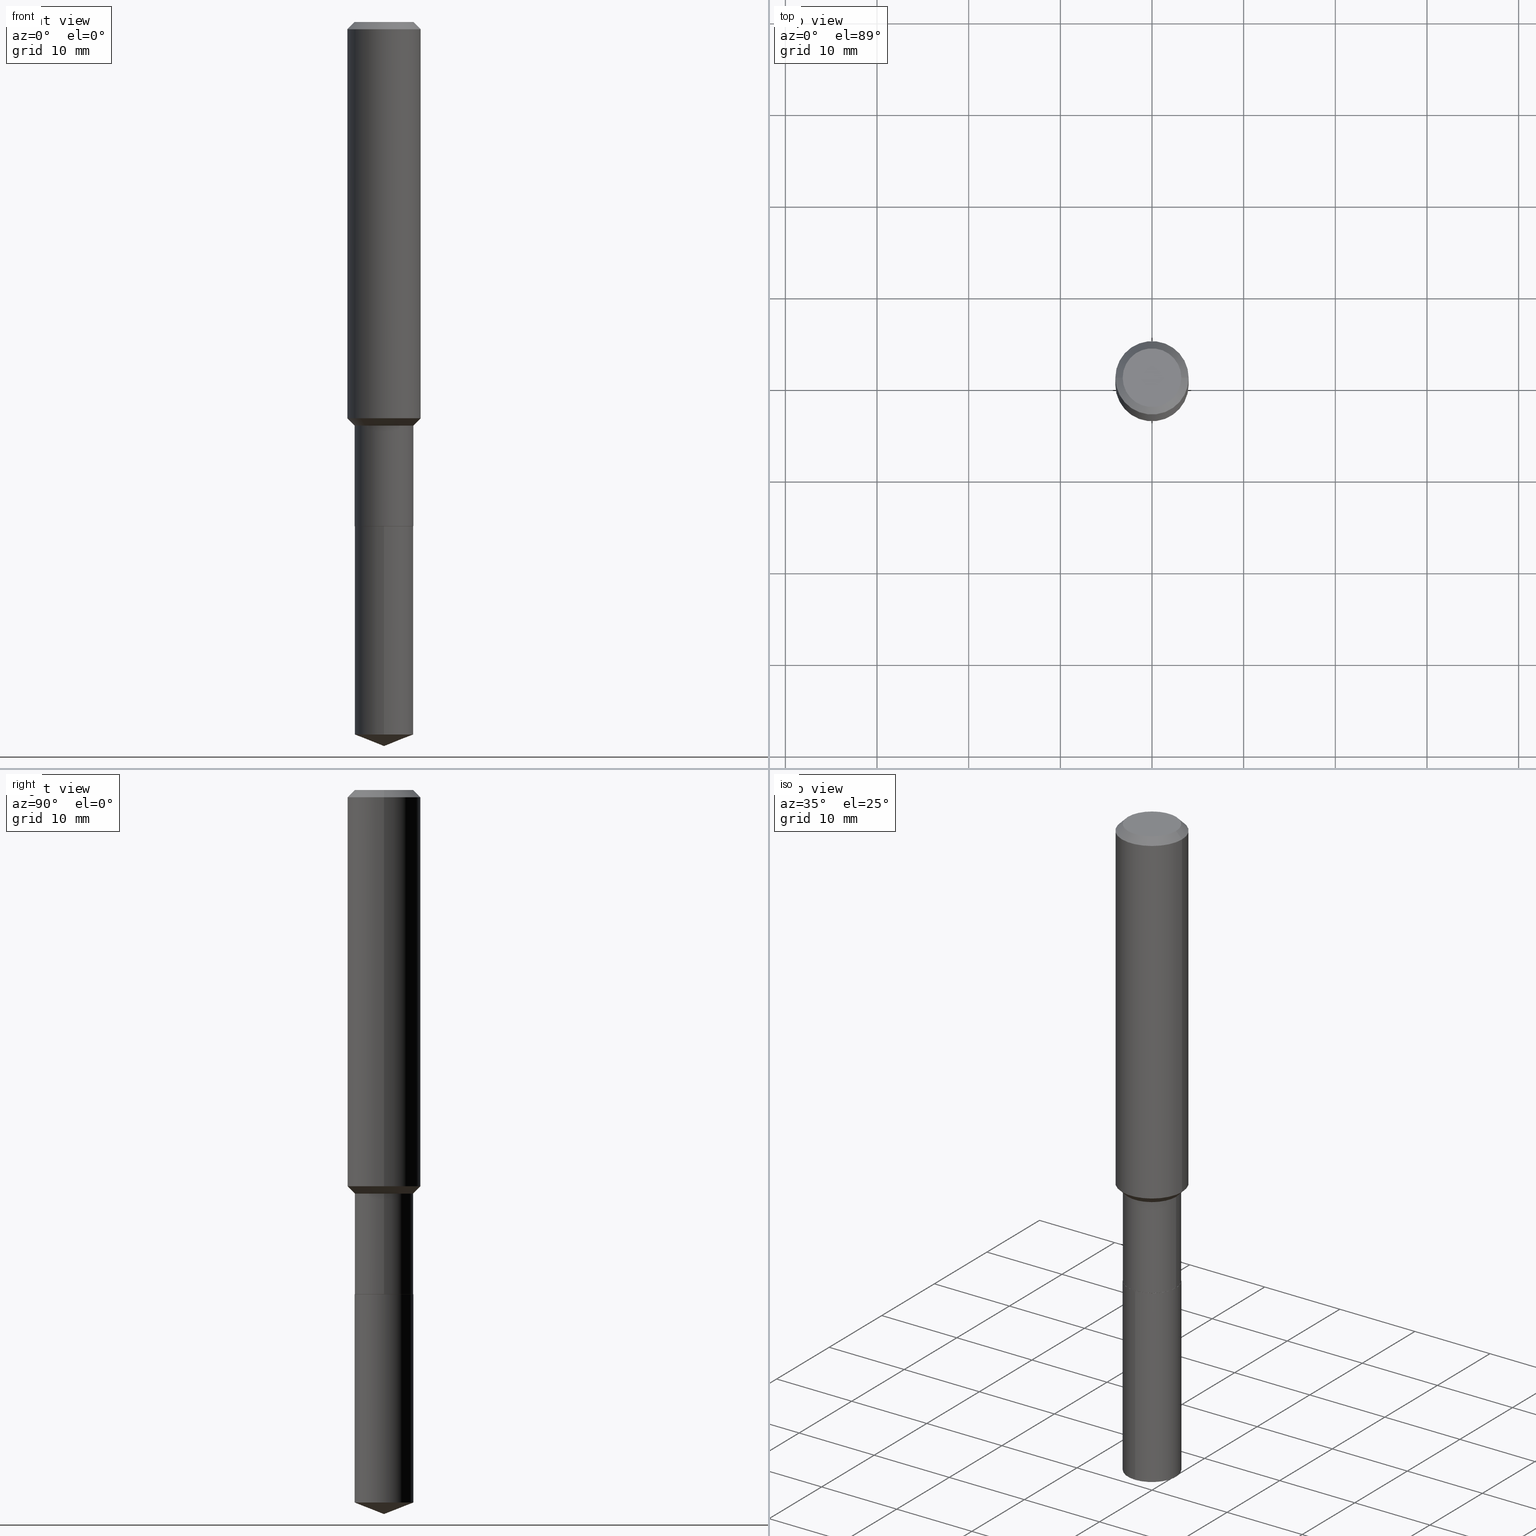
[diagram: canonical four-view strip — front | top / right | iso, engineering-drawing reading convention]
A machine part, canonical four-view strip (front | top / right | iso — engineering-drawing reading convention). The complete STEP part file that produces these views, byte-faithful:
ISO-10303-21;
HEADER;
FILE_DESCRIPTION (( 'STEP AP203' ),
    '1' );
FILE_NAME ('66434.STEP',
    '2024-04-24T22:42:02',
    ( '' ),
    ( '' ),
    'SwSTEP 2.0',
    'SolidWorks 2023',
    '' );
FILE_SCHEMA (( 'CONFIG_CONTROL_DESIGN' ));
ENDSEC;

DATA;
#1 = CIRCLE ( 'NONE', #5, 0.1260000000000000009 ) ;
#2 = ORIENTED_EDGE ( 'NONE', *, *, #38, .T. ) ;
#3 = CC_DESIGN_SECURITY_CLASSIFICATION ( #187, ( #448 ) ) ;
#4 = DIRECTION ( 'NONE',  ( 1.000000000000000000, -6.982962677686265922E-15, 4.876176775795935793E-29 ) ) ;
#5 = AXIS2_PLACEMENT_3D ( 'NONE', #270, #157, #198 ) ;
#6 = ORIENTED_EDGE ( 'NONE', *, *, #36, .T. ) ;
#7 = EDGE_CURVE ( 'NONE', #430, #361, #96, .T. ) ;
#8 = DIRECTION ( 'NONE',  ( -6.982962677686265922E-15, -1.000000000000000000, 4.336266656609941617E-15 ) ) ;
#9 = ORIENTED_EDGE ( 'NONE', *, *, #125, .T. ) ;
#10 = DIRECTION ( 'NONE',  ( -2.445321399674212677E-29, 3.491692433356646244E-15, 1.000000000000000000 ) ) ;
#11 = DIRECTION ( 'NONE',  ( -2.445321399674212397E-29, 3.491692433356646639E-15, 1.000000000000000000 ) ) ;
#12 = DESIGN_CONTEXT ( 'detailed design', #489, 'design' ) ;
#13 = DIRECTION ( 'NONE',  ( -6.982962677686266711E-15, -1.000000000000000000, 3.498627837349992784E-15 ) ) ;
#14 = DIRECTION ( 'NONE',  ( -2.445468806185136597E-29, 3.491481338843145583E-15, 1.000000000000000000 ) ) ;
#15 = CONICAL_SURFACE ( 'NONE', #265, 99.94676754584030220, 1.195550537616120623 ) ;
#16 =( GEOMETRIC_REPRESENTATION_CONTEXT ( 3 ) GLOBAL_UNCERTAINTY_ASSIGNED_CONTEXT ( ( #282 ) ) GLOBAL_UNIT_ASSIGNED_CONTEXT ( ( #99, #404, #284 ) ) REPRESENTATION_CONTEXT ( 'NONE', 'WORKASPACE' ) );
#17 = ORIENTED_EDGE ( 'NONE', *, *, #118, .F. ) ;
#18 = AXIS2_PLACEMENT_3D ( 'NONE', #449, #360, #185 ) ;
#19 = ADVANCED_FACE ( 'NONE', ( #254 ), #356, .T. ) ;
#20 = CARTESIAN_POINT ( 'NONE',  ( 0.1255000000000000004, -8.436466359046690257E-15, -2.165299999999999780 ) ) ;
#21 = LINE ( 'NONE', #165, #238 ) ;
#22 = ORIENTED_EDGE ( 'NONE', *, *, #143, .F. ) ;
#23 = APPLICATION_PROTOCOL_DEFINITION ( 'international standard', 'config_control_design', 1994, #101 ) ;
#24 = CARTESIAN_POINT ( 'NONE',  ( -9.439721640706201686E-47, 1.347742071746726764E-32, 3.860086710912459732E-18 ) ) ;
#25 = PERSON_AND_ORGANIZATION ( #301, #247 ) ;
#26 = PLANE ( 'NONE',  #108 ) ;
#27 = EDGE_CURVE ( 'NONE', #396, #343, #299, .T. ) ;
#28 = VERTEX_POINT ( 'NONE', #133 ) ;
#29 = AXIS2_PLACEMENT_3D ( 'NONE', #342, #91, #4 ) ;
#30 = COORDINATED_UNIVERSAL_TIME_OFFSET ( 5, 0, .BEHIND. ) ;
#31 = CARTESIAN_POINT ( 'NONE',  ( -0.1260000000000000009, -5.910660726749217363E-15, -2.164800000000000058 ) ) ;
#32 = DATE_AND_TIME ( #371, #331 ) ;
#33 = DIRECTION ( 'NONE',  ( -2.445468806185136597E-29, 3.491481338843145583E-15, 1.000000000000000000 ) ) ;
#34 = PERSON_AND_ORGANIZATION ( #301, #247 ) ;
#35 = VECTOR ( 'NONE', #398, 39.37007874015748143 ) ;
#36 = EDGE_CURVE ( 'NONE', #420, #454, #374, .T. ) ;
#37 = AXIS2_PLACEMENT_3D ( 'NONE', #446, #78, #75 ) ;
#38 = EDGE_CURVE ( 'NONE', #345, #403, #269, .T. ) ;
#39 = CC_DESIGN_PERSON_AND_ORGANIZATION_ASSIGNMENT ( #262, #411, ( #448 ) ) ;
#40 = DATE_AND_TIME ( #191, #84 ) ;
#41 = ORIENTED_EDGE ( 'NONE', *, *, #350, .F. ) ;
#42 = FACE_OUTER_BOUND ( 'NONE', #328, .T. ) ;
#43 = EDGE_LOOP ( 'NONE', ( #9, #438, #400, #51 ) ) ;
#44 = DIRECTION ( 'NONE',  ( 1.000000000000000000, -6.982962677686265922E-15, 4.876281427513067258E-29 ) ) ;
#45 = CARTESIAN_POINT ( 'NONE',  ( 7.703226739483228723E-31, -1.099816621735597661E-16, -0.03150000000000019451 ) ) ;
#46 = ORIENTED_EDGE ( 'NONE', *, *, #385, .T. ) ;
#47 = AXIS2_PLACEMENT_3D ( 'NONE', #287, #168, #164 ) ;
#48 = DIRECTION ( 'NONE',  ( 2.445468806185136597E-29, -3.491481338843145583E-15, -1.000000000000000000 ) ) ;
#49 = AXIS2_PLACEMENT_3D ( 'NONE', #346, #161, #457 ) ;
#50 = DIRECTION ( 'NONE',  ( 1.000000000000000000, -6.982962677686267499E-15, 0.000000000000000000 ) ) ;
#51 = ORIENTED_EDGE ( 'NONE', *, *, #439, .F. ) ;
#52 = LINE ( 'NONE', #462, #305 ) ;
#53 = ADVANCED_FACE ( 'NONE', ( #184 ), #249, .T. ) ;
#54 = EDGE_LOOP ( 'NONE', ( #41, #313, #105, #475 ) ) ;
#55 = LINE ( 'NONE', #357, #35 ) ;
#56 = CARTESIAN_POINT ( 'NONE',  ( 7.606082573554659811E-29, -1.085894764032567561E-14, -3.110199999999999854 ) ) ;
#57 = CARTESIAN_POINT ( 'NONE',  ( -8.798532973884166966E-16, -0.1260000000000075782, -2.165299999999999336 ) ) ;
#58 = EDGE_LOOP ( 'NONE', ( #174, #251, #211, #158 ) ) ;
#59 = DIRECTION ( 'NONE',  ( -2.445321399674212677E-29, 3.491692433356646244E-15, 1.000000000000000000 ) ) ;
#60 = CYLINDRICAL_SURFACE ( 'NONE', #126, 0.1575000000000000844 ) ;
#61 = ORIENTED_EDGE ( 'NONE', *, *, #87, .F. ) ;
#62 = DIRECTION ( 'NONE',  ( 1.000000000000000000, 0.000000000000000000, 0.000000000000000000 ) ) ;
#63 = PRODUCT_DEFINITION ( 'UNKNOWN', '', #448, #12 ) ;
#64 = CARTESIAN_POINT ( 'NONE',  ( -0.1259999999999999454, -5.158246498228519348E-15, -1.733800000000000008 ) ) ;
#65 = VECTOR ( 'NONE', #460, 39.37007874015748143 ) ;
#66 = LINE ( 'NONE', #445, #318 ) ;
#67 = DIRECTION ( 'NONE',  ( -6.982962677686265922E-15, -1.000000000000000000, 4.336266656609941617E-15 ) ) ;
#68 = CC_DESIGN_PERSON_AND_ORGANIZATION_ASSIGNMENT ( #109, #443, ( #63 ) ) ;
#69 = SECURITY_CLASSIFICATION_LEVEL ( 'unclassified' ) ;
#70 = DIMENSIONAL_EXPONENTS ( 1.000000000000000000, 0.000000000000000000, 0.000000000000000000, 0.000000000000000000, 0.000000000000000000, 0.000000000000000000, 0.000000000000000000 ) ;
#71 = CLOSED_SHELL ( 'NONE', ( #370, #19, #413, #474, #340 ) ) ;
#72 = EDGE_CURVE ( 'NONE', #435, #420, #484, .T. ) ;
#73 = CONICAL_SURFACE ( 'NONE', #407, 0.1259999999999999454, 0.7853981633974491672 ) ;
#74 = CC_DESIGN_PERSON_AND_ORGANIZATION_ASSIGNMENT ( #302, #451, ( #448 ) ) ;
#75 = DIRECTION ( 'NONE',  ( 1.000000000000000000, -6.982962677686267499E-15, 0.000000000000000000 ) ) ;
#76 = ORIENTED_EDGE ( 'NONE', *, *, #256, .F. ) ;
#77 = CONICAL_SURFACE ( 'NONE', #452, 0.1575000000000000011, 0.7853981633974449483 ) ;
#78 = DIRECTION ( 'NONE',  ( -2.445468806185136597E-29, 3.491481338843145583E-15, 1.000000000000000000 ) ) ;
#79 = ORIENTED_EDGE ( 'NONE', *, *, #388, .F. ) ;
#80 = CARTESIAN_POINT ( 'NONE',  ( 4.239953816163789675E-29, -6.053530345286245589E-15, -1.733800000000000008 ) ) ;
#81 = VERTEX_POINT ( 'NONE', #380 ) ;
#82 = ADVANCED_FACE ( 'NONE', ( #42 ), #192, .T. ) ;
#83 = DIRECTION ( 'NONE',  ( 2.445468806185136597E-29, -3.491481338843145583E-15, -1.000000000000000000 ) ) ;
#84 = LOCAL_TIME ( 18, 42, 2.000000000000000000, #159 ) ;
#85 = PLANE ( 'NONE',  #341 ) ;
#86 = CONICAL_SURFACE ( 'NONE', #477, 0.1259999999999999454, 0.7853981633974491672 ) ;
#87 = EDGE_CURVE ( 'NONE', #81, #345, #88, .T. ) ;
#88 = LINE ( 'NONE', #272, #65 ) ;
#89 = VERTEX_POINT ( 'NONE', #349 ) ;
#90 = CARTESIAN_POINT ( 'NONE',  ( -8.866673825358101725E-28, 1.266088013143874858E-13, 36.25987874015748247 ) ) ;
#91 = DIRECTION ( 'NONE',  ( -2.445468806185136597E-29, 3.491481338843145583E-15, 1.000000000000000000 ) ) ;
#92 = ORIENTED_EDGE ( 'NONE', *, *, #409, .T. ) ;
#93 = LINE ( 'NONE', #20, #486 ) ;
#94 = LINE ( 'NONE', #441, #387 ) ;
#95 = AXIS2_PLACEMENT_3D ( 'NONE', #127, #279, #391 ) ;
#96 = CIRCLE ( 'NONE', #219, 0.1260000000000000009 ) ;
#97 = ORIENTED_EDGE ( 'NONE', *, *, #72, .T. ) ;
#98 = AXIS2_PLACEMENT_3D ( 'NONE', #362, #227, #414 ) ;
#99 =( CONVERSION_BASED_UNIT ( 'INCH', #353 ) LENGTH_UNIT ( ) NAMED_UNIT ( #70 ) );
#100 = CYLINDRICAL_SURFACE ( 'NONE', #406, 0.1259999999999999731 ) ;
#101 = APPLICATION_CONTEXT ( 'configuration controlled 3d designs of mechanical parts and assemblies' ) ;
#102 = DIRECTION ( 'NONE',  ( -6.982962677686265922E-15, -1.000000000000000000, 4.336266656609941617E-15 ) ) ;
#103 = EDGE_CURVE ( 'NONE', #361, #430, #107, .T. ) ;
#104 = APPROVAL_ROLE ( '' ) ;
#105 = ORIENTED_EDGE ( 'NONE', *, *, #423, .T. ) ;
#106 = CARTESIAN_POINT ( 'NONE',  ( 5.295173606032675561E-29, -7.560104542997063911E-15, -2.165299999999999780 ) ) ;
#107 = CIRCLE ( 'NONE', #148, 0.1260000000000000009 ) ;
#108 = AXIS2_PLACEMENT_3D ( 'NONE', #334, #222, #471 ) ;
#109 = PERSON_AND_ORGANIZATION ( #301, #247 ) ;
#110 = FACE_OUTER_BOUND ( 'NONE', #459, .T. ) ;
#111 = DIRECTION ( 'NONE',  ( 1.000000000000000000, -6.982962677686267499E-15, 4.876176775795936353E-29 ) ) ;
#112 = EDGE_CURVE ( 'NONE', #420, #361, #21, .T. ) ;
#113 = CALENDAR_DATE ( 2024, 24, 4 ) ;
#114 = PERSON_AND_ORGANIZATION_ROLE ( 'classification_officer' ) ;
#115 = VECTOR ( 'NONE', #433, 39.37007874015748854 ) ;
#116 = APPROVAL_ROLE ( '' ) ;
#117 = AXIS2_PLACEMENT_3D ( 'NONE', #246, #59, #212 ) ;
#118 = EDGE_CURVE ( 'NONE', #81, #28, #1, .T. ) ;
#119 = DIRECTION ( 'NONE',  ( -2.445468806185136597E-29, 3.491481338843145583E-15, 1.000000000000000000 ) ) ;
#120 = ORIENTED_EDGE ( 'NONE', *, *, #439, .T. ) ;
#121 = CARTESIAN_POINT ( 'NONE',  ( 5.295173606032675561E-29, -7.560104542997063911E-15, -2.165299999999999780 ) ) ;
#122 = ORIENTED_EDGE ( 'NONE', *, *, #291, .F. ) ;
#123 = FACE_OUTER_BOUND ( 'NONE', #129, .T. ) ;
#124 = EDGE_LOOP ( 'NONE', ( #6, #335, #271, #283 ) ) ;
#125 = EDGE_CURVE ( 'NONE', #89, #324, #138, .T. ) ;
#126 = AXIS2_PLACEMENT_3D ( 'NONE', #473, #285, #111 ) ;
#127 = CARTESIAN_POINT ( 'NONE',  ( 5.295173606032675561E-29, -7.560104542997063911E-15, -2.165299999999999780 ) ) ;
#128 = CARTESIAN_POINT ( 'NONE',  ( 4.239953816163789675E-29, -6.053530345286245589E-15, -1.733800000000000008 ) ) ;
#129 = EDGE_LOOP ( 'NONE', ( #205, #135, #79, #177 ) ) ;
#130 = DIRECTION ( 'NONE',  ( -2.445321399674212677E-29, 3.491692433356646244E-15, 1.000000000000000000 ) ) ;
#131 = LINE ( 'NONE', #56, #115 ) ;
#132 = ORIENTED_EDGE ( 'NONE', *, *, #180, .T. ) ;
#133 = CARTESIAN_POINT ( 'NONE',  ( -0.1260000000000000009, 9.348441284752484904E-16, 3.860086710906114178E-18 ) ) ;
#134 = CARTESIAN_POINT ( 'NONE',  ( 5.295173606032675561E-29, -7.560104542997063911E-15, -2.165299999999999780 ) ) ;
#135 = ORIENTED_EDGE ( 'NONE', *, *, #350, .T. ) ;
#136 = FACE_OUTER_BOUND ( 'NONE', #390, .T. ) ;
#137 = CARTESIAN_POINT ( 'NONE',  ( 5.295173606032675561E-29, -7.560104542997063911E-15, -2.165299999999999780 ) ) ;
#138 = CIRCLE ( 'NONE', #182, 0.1255000000000000004 ) ;
#139 = APPROVAL_STATUS ( 'not_yet_approved' ) ;
#140 = DIRECTION ( 'NONE',  ( -2.445468806185136597E-29, 3.491481338843145583E-15, 1.000000000000000000 ) ) ;
#141 = VERTEX_POINT ( 'NONE', #194 ) ;
#142 = CARTESIAN_POINT ( 'NONE',  ( 5.295173606032675561E-29, -7.560104542997063911E-15, -2.165299999999999780 ) ) ;
#143 = EDGE_CURVE ( 'NONE', #403, #345, #425, .T. ) ;
#144 = CARTESIAN_POINT ( 'NONE',  ( -0.1575000000000001954, -4.824443874290526161E-15, -1.702299999999999702 ) ) ;
#145 = CALENDAR_DATE ( 2024, 24, 4 ) ;
#146 = MANIFOLD_SOLID_BREP ( 'Body-Move/Copy2[2]', #151 ) ;
#147 = EDGE_CURVE ( 'NONE', #381, #141, #52, .T. ) ;
#148 = AXIS2_PLACEMENT_3D ( 'NONE', #121, #241, #8 ) ;
#149 = APPROVAL_PERSON_ORGANIZATION ( #440, #162, #104 ) ;
#150 = PERSON_AND_ORGANIZATION ( #301, #247 ) ;
#151 = CLOSED_SHELL ( 'NONE', ( #53, #175, #303, #153, #82, #321, #339, #434, #200, #244, #280, #382 ) ) ;
#152 = CIRCLE ( 'NONE', #427, 0.1255000000000000004 ) ;
#153 = ADVANCED_FACE ( 'NONE', ( #123 ), #86, .T. ) ;
#154 = APPROVAL_DATE_TIME ( #188, #209 ) ;
#155 = CIRCLE ( 'NONE', #309, 0.1260000000000000009 ) ;
#156 = AXIS2_PLACEMENT_3D ( 'NONE', #372, #33, #485 ) ;
#157 = DIRECTION ( 'NONE',  ( -2.445468806185136597E-29, 3.491481338843145583E-15, 1.000000000000000000 ) ) ;
#158 = ORIENTED_EDGE ( 'NONE', *, *, #180, .F. ) ;
#159 = COORDINATED_UNIVERSAL_TIME_OFFSET ( 5, 0, .BEHIND. ) ;
#160 = PRODUCT_DEFINITION_SHAPE ( 'NONE', 'NONE',  #63 ) ;
#161 = DIRECTION ( 'NONE',  ( -2.445468806185136597E-29, 3.491481338843145583E-15, 1.000000000000000000 ) ) ;
#162 = APPROVAL ( #139, 'UNSPECIFIED' ) ;
#163 = ORIENTED_EDGE ( 'NONE', *, *, #112, .T. ) ;
#164 = DIRECTION ( 'NONE',  ( 1.000000000000000000, -6.982962677686267499E-15, 4.876176775795936353E-29 ) ) ;
#165 = CARTESIAN_POINT ( 'NONE',  ( -8.798532973884166966E-16, -0.1260000000000075782, -2.165299999999999336 ) ) ;
#166 = ORIENTED_EDGE ( 'NONE', *, *, #409, .F. ) ;
#167 = CIRCLE ( 'NONE', #156, 0.1575000000000001954 ) ;
#168 = DIRECTION ( 'NONE',  ( -2.445468806185136597E-29, 3.491481338843145583E-15, 1.000000000000000000 ) ) ;
#169 = DIRECTION ( 'NONE',  ( 1.000000000000000000, -6.982962677686265922E-15, 0.000000000000000000 ) ) ;
#170 = CONICAL_SURFACE ( 'NONE', #377, 0.1255000000000000004, 0.7853981633975507526 ) ;
#171 = VERTEX_POINT ( 'NONE', #421 ) ;
#172 = CARTESIAN_POINT ( 'NONE',  ( 4.162921548768957196E-29, -5.943548683112686131E-15, -1.702299999999999702 ) ) ;
#173 = CARTESIAN_POINT ( 'NONE',  ( 4.239953816163789675E-29, -6.053530345286245589E-15, -1.733800000000000008 ) ) ;
#174 = ORIENTED_EDGE ( 'NONE', *, *, #388, .T. ) ;
#175 = ADVANCED_FACE ( 'NONE', ( #316 ), #77, .T. ) ;
#176 = FACE_OUTER_BOUND ( 'NONE', #472, .T. ) ;
#177 = ORIENTED_EDGE ( 'NONE', *, *, #423, .F. ) ;
#178 = PERSON_AND_ORGANIZATION_ROLE ( 'design_owner' ) ;
#179 = FACE_OUTER_BOUND ( 'NONE', #54, .T. ) ;
#180 = EDGE_CURVE ( 'NONE', #343, #345, #395, .T. ) ;
#181 = EDGE_LOOP ( 'NONE', ( #61, #166, #46, #199 ) ) ;
#182 = AXIS2_PLACEMENT_3D ( 'NONE', #233, #311, #50 ) ;
#183 = DIRECTION ( 'NONE',  ( -2.445468806185136597E-29, 3.491481338843145583E-15, 1.000000000000000000 ) ) ;
#184 = FACE_OUTER_BOUND ( 'NONE', #43, .T. ) ;
#185 = DIRECTION ( 'NONE',  ( 1.000000000000000000, -6.982962677686265922E-15, 4.876176775795935793E-29 ) ) ;
#186 = CIRCLE ( 'NONE', #300, 0.1260000000000000009 ) ;
#187 = SECURITY_CLASSIFICATION ( '', '', #69 ) ;
#188 = DATE_AND_TIME ( #453, #378 ) ;
#189 = ORIENTED_EDGE ( 'NONE', *, *, #228, .F. ) ;
#190 = EDGE_CURVE ( 'NONE', #324, #381, #383, .T. ) ;
#191 = CALENDAR_DATE ( 2024, 24, 4 ) ;
#192 = CYLINDRICAL_SURFACE ( 'NONE', #29, 0.1259999999999999731 ) ;
#193 = ORIENTED_EDGE ( 'NONE', *, *, #125, .F. ) ;
#194 = CARTESIAN_POINT ( 'NONE',  ( -0.1259999999999999454, -5.910660726749217363E-15, -1.733800000000000008 ) ) ;
#195 = VERTEX_POINT ( 'NONE', #308 ) ;
#196 = DATE_TIME_ROLE ( 'classification_date' ) ;
#197 = VECTOR ( 'NONE', #354, 39.37007874015748143 ) ;
#198 = DIRECTION ( 'NONE',  ( 1.000000000000000000, -6.982962677686265922E-15, 4.876281427513067258E-29 ) ) ;
#199 = ORIENTED_EDGE ( 'NONE', *, *, #143, .T. ) ;
#200 = ADVANCED_FACE ( 'NONE', ( #389 ), #275, .T. ) ;
#201 = LINE ( 'NONE', #392, #197 ) ;
#202 = ORIENTED_EDGE ( 'NONE', *, *, #213, .F. ) ;
#203 = CARTESIAN_POINT ( 'NONE',  ( 7.605438617266735127E-29, -1.085986180622584192E-14, -3.110199999999999854 ) ) ;
#204 = CARTESIAN_POINT ( 'NONE',  ( 0.1575000000000000844, -1.099816621735587677E-15, 7.679978421878603638E-30 ) ) ;
#205 = ORIENTED_EDGE ( 'NONE', *, *, #218, .T. ) ;
#206 = CYLINDRICAL_SURFACE ( 'NONE', #95, 0.1260000000000000009 ) ;
#207 = ADVANCED_BREP_SHAPE_REPRESENTATION ( '66434', ( #312, #146, #297 ), #16 ) ;
#208 = DIRECTION ( 'NONE',  ( -1.000000000000000000, 6.982962677686265922E-15, 0.000000000000000000 ) ) ;
#209 = APPROVAL ( #266, 'UNSPECIFIED' ) ;
#210 = PLANE ( 'NONE',  #18 ) ;
#211 = ORIENTED_EDGE ( 'NONE', *, *, #38, .F. ) ;
#212 = DIRECTION ( 'NONE',  ( -6.982962677686265922E-15, -1.000000000000000000, 4.336266656609941617E-15 ) ) ;
#213 = EDGE_CURVE ( 'NONE', #171, #195, #201, .T. ) ;
#214 = CARTESIAN_POINT ( 'NONE',  ( -0.1255000000000000004, -6.665724182444026579E-15, -2.165299999999999780 ) ) ;
#215 = EDGE_LOOP ( 'NONE', ( #416, #418, #132, #22 ) ) ;
#216 = VECTOR ( 'NONE', #424, 39.37007874015748143 ) ;
#217 = DIRECTION ( 'NONE',  ( -0.7071067811865481278, 7.493145998870357316E-15, 0.7071067811865469066 ) ) ;
#218 = EDGE_CURVE ( 'NONE', #195, #141, #288, .T. ) ;
#219 = AXIS2_PLACEMENT_3D ( 'NONE', #137, #290, #102 ) ;
#220 = DATE_AND_TIME ( #113, #397 ) ;
#221 = DIRECTION ( 'NONE',  ( -0.7071067811865451302, 2.468850131082231817E-15, -0.7071067811865499042 ) ) ;
#222 = DIRECTION ( 'NONE',  ( 2.445321399674212117E-29, -3.491692433356646639E-15, -1.000000000000000000 ) ) ;
#223 = PERSON_AND_ORGANIZATION ( #301, #247 ) ;
#224 = APPROVAL_PERSON_ORGANIZATION ( #150, #209, #116 ) ;
#225 = VECTOR ( 'NONE', #253, 39.37007874015748143 ) ;
#226 = APPROVAL ( #338, 'UNSPECIFIED' ) ;
#227 = DIRECTION ( 'NONE',  ( -2.445468806185136597E-29, 3.491481338843145583E-15, 1.000000000000000000 ) ) ;
#228 = EDGE_CURVE ( 'NONE', #381, #171, #365, .T. ) ;
#229 = ORIENTED_EDGE ( 'NONE', *, *, #118, .T. ) ;
#230 = CC_DESIGN_APPROVAL ( #209, ( #187 ) ) ;
#231 = DIRECTION ( 'NONE',  ( -6.497071151882122203E-15, -0.9304175679820250178, 0.3665012267242960253 ) ) ;
#232 = ORIENTED_EDGE ( 'NONE', *, *, #147, .T. ) ;
#233 = CARTESIAN_POINT ( 'NONE',  ( 5.295173606032675561E-29, -7.560104542997063911E-15, -2.165299999999999780 ) ) ;
#234 = ORIENTED_EDGE ( 'NONE', *, *, #72, .F. ) ;
#235 = CARTESIAN_POINT ( 'NONE',  ( -0.1255000000000000004, -6.668373409618136991E-15, -2.165299999999999780 ) ) ;
#236 = EDGE_LOOP ( 'NONE', ( #393, #480, #120, #189 ) ) ;
#237 = EDGE_CURVE ( 'NONE', #141, #195, #367, .T. ) ;
#238 = VECTOR ( 'NONE', #11, 39.37007874015748143 ) ;
#239 = DIRECTION ( 'NONE',  ( 2.438088387897960049E-29, -3.491481338843145188E-15, -1.000000000000000000 ) ) ;
#240 = DIRECTION ( 'NONE',  ( -6.982962677686265922E-15, -1.000000000000000000, 4.336266656609941617E-15 ) ) ;
#241 = DIRECTION ( 'NONE',  ( -2.445321399674212677E-29, 3.491692433356646244E-15, 1.000000000000000000 ) ) ;
#242 = ORIENTED_EDGE ( 'NONE', *, *, #213, .T. ) ;
#243 = DIRECTION ( 'NONE',  ( -2.445468806185136877E-29, 3.491481338843145188E-15, 1.000000000000000000 ) ) ;
#244 = ADVANCED_FACE ( 'NONE', ( #323 ), #85, .F. ) ;
#245 = EDGE_LOOP ( 'NONE', ( #92, #229 ) ) ;
#246 = CARTESIAN_POINT ( 'NONE',  ( 7.484389844422130084E-29, -1.068610253065805926E-14, -3.060567280072517882 ) ) ;
#247 = ORGANIZATION ( 'UNSPECIFIED', 'UNSPECIFIED', '' ) ;
#248 = CARTESIAN_POINT ( 'NONE',  ( 8.952838470578011823E-16, 0.1259999999999893705, -3.060567280072518770 ) ) ;
#249 = CONICAL_SURFACE ( 'NONE', #37, 0.1255000000000000004, 0.7853981633975507526 ) ;
#250 = DIRECTION ( 'NONE',  ( 1.000000000000000000, -6.982962677686262766E-15, 0.000000000000000000 ) ) ;
#251 = ORIENTED_EDGE ( 'NONE', *, *, #263, .T. ) ;
#252 = DIRECTION ( 'NONE',  ( 0.000000000000000000, 0.000000000000000000, 1.000000000000000000 ) ) ;
#253 = DIRECTION ( 'NONE',  ( -2.445321399674212397E-29, 3.491692433356646639E-15, 1.000000000000000000 ) ) ;
#254 = FACE_OUTER_BOUND ( 'NONE', #355, .T. ) ;
#255 = CARTESIAN_POINT ( 'NONE',  ( 8.952838470578011823E-16, 0.1259999999999924514, -2.165300000000000669 ) ) ;
#256 = EDGE_CURVE ( 'NONE', #435, #454, #131, .T. ) ;
#257 = LINE ( 'NONE', #402, #225 ) ;
#258 = AXIS2_PLACEMENT_3D ( 'NONE', #134, #483, #67 ) ;
#259 = CARTESIAN_POINT ( 'NONE',  ( 0.000000000000000000, 0.000000000000000000, 0.000000000000000000 ) ) ;
#260 = DATE_TIME_ROLE ( 'creation_date' ) ;
#261 = CARTESIAN_POINT ( 'NONE',  ( -0.1575000000000000011, -1.907660363820963613E-15, -0.03150000000000019451 ) ) ;
#262 = PERSON_AND_ORGANIZATION ( #301, #247 ) ;
#263 = EDGE_CURVE ( 'NONE', #396, #403, #94, .T. ) ;
#264 = DIRECTION ( 'NONE',  ( -2.445468806185136597E-29, 3.491481338843145583E-15, 1.000000000000000000 ) ) ;
#265 = AXIS2_PLACEMENT_3D ( 'NONE', #90, #10, #468 ) ;
#266 = APPROVAL_STATUS ( 'not_yet_approved' ) ;
#267 = CC_DESIGN_PERSON_AND_ORGANIZATION_ASSIGNMENT ( #25, #178, ( #307 ) ) ;
#268 = ORIENTED_EDGE ( 'NONE', *, *, #256, .T. ) ;
#269 = CIRCLE ( 'NONE', #98, 0.1575000000000000011 ) ;
#270 = CARTESIAN_POINT ( 'NONE',  ( -9.439721640706201686E-47, 1.347742071746726764E-32, 3.860086710912459732E-18 ) ) ;
#271 = ORIENTED_EDGE ( 'NONE', *, *, #103, .F. ) ;
#272 = CARTESIAN_POINT ( 'NONE',  ( 0.1575000000000000011, -1.190510096822576026E-15, -0.03150000000000019451 ) ) ;
#273 = DIRECTION ( 'NONE',  ( -2.445468806185136597E-29, 3.491481338843145583E-15, 1.000000000000000000 ) ) ;
#274 = ORIENTED_EDGE ( 'NONE', *, *, #147, .F. ) ;
#275 = CONICAL_SURFACE ( 'NONE', #436, 0.1575000000000000011, 0.7853981633974449483 ) ;
#276 = VECTOR ( 'NONE', #277, 39.37007874015748143 ) ;
#277 = DIRECTION ( 'NONE',  ( -0.7071067811866199593, 7.493145998870616062E-15, 0.7071067811864750752 ) ) ;
#278 = EDGE_LOOP ( 'NONE', ( #122, #422, #163, #442 ) ) ;
#279 = DIRECTION ( 'NONE',  ( -2.445321399674212677E-29, 3.491692433356646244E-15, 1.000000000000000000 ) ) ;
#280 = ADVANCED_FACE ( 'NONE', ( #136 ), #210, .F. ) ;
#281 = CARTESIAN_POINT ( 'NONE',  ( 7.703226739483228723E-31, -1.099816621735597661E-16, -0.03150000000000019451 ) ) ;
#282 = UNCERTAINTY_MEASURE_WITH_UNIT (LENGTH_MEASURE( 1.000000000000000082E-05 ), #99, 'distance_accuracy_value', 'NONE');
#283 = ORIENTED_EDGE ( 'NONE', *, *, #112, .F. ) ;
#284 =( NAMED_UNIT ( * ) SI_UNIT ( $, .STERADIAN. ) SOLID_ANGLE_UNIT ( ) );
#285 = DIRECTION ( 'NONE',  ( -2.445468806185136597E-29, 3.491481338843145583E-15, 1.000000000000000000 ) ) ;
#286 = ORIENTED_EDGE ( 'NONE', *, *, #385, .F. ) ;
#287 = CARTESIAN_POINT ( 'NONE',  ( 0.000000000000000000, 0.000000000000000000, 0.000000000000000000 ) ) ;
#288 = CIRCLE ( 'NONE', #49, 0.1259999999999999454 ) ;
#289 = DIRECTION ( 'NONE',  ( -2.445468806185136877E-29, 3.491481338843145188E-15, 1.000000000000000000 ) ) ;
#290 = DIRECTION ( 'NONE',  ( -2.445321399674212677E-29, 3.491692433356646244E-15, 1.000000000000000000 ) ) ;
#291 = EDGE_CURVE ( 'NONE', #454, #430, #257, .T. ) ;
#292 = FACE_OUTER_BOUND ( 'NONE', #215, .T. ) ;
#293 = CARTESIAN_POINT ( 'NONE',  ( 0.1575000000000000011, -1.209798283909146741E-15, -0.03150000000000019451 ) ) ;
#294 = ORIENTED_EDGE ( 'NONE', *, *, #7, .T. ) ;
#295 = EDGE_CURVE ( 'NONE', #324, #89, #152, .T. ) ;
#296 = FACE_OUTER_BOUND ( 'NONE', #310, .T. ) ;
#297 = AXIS2_PLACEMENT_3D ( 'NONE', #332, #252, #62 ) ;
#298 = LINE ( 'NONE', #64, #466 ) ;
#299 = CIRCLE ( 'NONE', #488, 0.1575000000000001954 ) ;
#300 = AXIS2_PLACEMENT_3D ( 'NONE', #410, #140, #250 ) ;
#301 = PERSON ( 'UNSPECIFIED', 'UNSPECIFIED', 'UNSPECIFIED', ('UNSPECIFIED'), ('UNSPECIFIED'), ('UNSPECIFIED') ) ;
#302 = PERSON_AND_ORGANIZATION ( #301, #247 ) ;
#303 = ADVANCED_FACE ( 'NONE', ( #437 ), #60, .T. ) ;
#304 = EDGE_CURVE ( 'NONE', #171, #381, #186, .T. ) ;
#305 = VECTOR ( 'NONE', #243, 39.37007874015748143 ) ;
#306 = COORDINATED_UNIVERSAL_TIME_OFFSET ( 5, 0, .BEHIND. ) ;
#307 = PRODUCT ( '66434', '66434', '', ( #401 ) ) ;
#308 = CARTESIAN_POINT ( 'NONE',  ( 0.1259999999999999454, -6.933383642674714153E-15, -1.733800000000000008 ) ) ;
#309 = AXIS2_PLACEMENT_3D ( 'NONE', #315, #130, #240 ) ;
#310 = EDGE_LOOP ( 'NONE', ( #461, #294 ) ) ;
#311 = DIRECTION ( 'NONE',  ( -2.445468806185136597E-29, 3.491481338843145583E-15, 1.000000000000000000 ) ) ;
#312 = MANIFOLD_SOLID_BREP ( 'Body-Move/Copy2[1]', #71 ) ;
#313 = ORIENTED_EDGE ( 'NONE', *, *, #237, .T. ) ;
#314 = DIRECTION ( 'NONE',  ( 1.000000000000000000, -6.982962677686265922E-15, 0.000000000000000000 ) ) ;
#315 = CARTESIAN_POINT ( 'NONE',  ( 7.484389844422130084E-29, -1.068610253065805926E-14, -3.060567280072517882 ) ) ;
#316 = FACE_OUTER_BOUND ( 'NONE', #364, .T. ) ;
#317 = ORIENTED_EDGE ( 'NONE', *, *, #295, .F. ) ;
#318 = VECTOR ( 'NONE', #221, 39.37007874015748143 ) ;
#319 = DIRECTION ( 'NONE',  ( -2.445468806185136597E-29, 3.491481338843145583E-15, 1.000000000000000000 ) ) ;
#320 = CC_DESIGN_APPROVAL ( #162, ( #63 ) ) ;
#321 = ADVANCED_FACE ( 'NONE', ( #176 ), #100, .T. ) ;
#322 = AXIS2_PLACEMENT_3D ( 'NONE', #80, #119, #344 ) ;
#323 = FACE_OUTER_BOUND ( 'NONE', #245, .T. ) ;
#324 = VERTEX_POINT ( 'NONE', #214 ) ;
#325 = DIRECTION ( 'NONE',  ( 1.000000000000000000, -6.982962677686265922E-15, 0.000000000000000000 ) ) ;
#326 = FACE_OUTER_BOUND ( 'NONE', #278, .T. ) ;
#327 = DIRECTION ( 'NONE',  ( -2.445468806185136597E-29, 3.491481338843145583E-15, 1.000000000000000000 ) ) ;
#328 = EDGE_LOOP ( 'NONE', ( #347, #232, #432, #202 ) ) ;
#329 = CYLINDRICAL_SURFACE ( 'NONE', #47, 0.1575000000000000844 ) ;
#330 = DIRECTION ( 'NONE',  ( 1.000000000000000000, -6.982962677686267499E-15, 0.000000000000000000 ) ) ;
#331 = LOCAL_TIME ( 18, 42, 2.000000000000000000, #30 ) ;
#332 = CARTESIAN_POINT ( 'NONE',  ( 0.000000000000000000, 0.000000000000000000, 0.000000000000000000 ) ) ;
#333 = AXIS2_PLACEMENT_3D ( 'NONE', #465, #14, #429 ) ;
#334 = CARTESIAN_POINT ( 'NONE',  ( 5.295173606032675561E-29, -7.560104542997063911E-15, -2.165299999999999780 ) ) ;
#335 = ORIENTED_EDGE ( 'NONE', *, *, #291, .T. ) ;
#336 = DIRECTION ( 'NONE',  ( 1.000000000000000000, -6.982962677686267499E-15, 0.000000000000000000 ) ) ;
#337 = FACE_OUTER_BOUND ( 'NONE', #236, .T. ) ;
#338 = APPROVAL_STATUS ( 'not_yet_approved' ) ;
#339 = ADVANCED_FACE ( 'NONE', ( #179 ), #73, .T. ) ;
#340 = ADVANCED_FACE ( 'NONE', ( #296 ), #26, .F. ) ;
#341 = AXIS2_PLACEMENT_3D ( 'NONE', #358, #239, #469 ) ;
#342 = CARTESIAN_POINT ( 'NONE',  ( 0.000000000000000000, 0.000000000000000000, 0.000000000000000000 ) ) ;
#343 = VERTEX_POINT ( 'NONE', #479 ) ;
#344 = DIRECTION ( 'NONE',  ( 1.000000000000000000, -6.982962677686265922E-15, 0.000000000000000000 ) ) ;
#345 = VERTEX_POINT ( 'NONE', #293 ) ;
#346 = CARTESIAN_POINT ( 'NONE',  ( 4.239953816163789675E-29, -6.053530345286245589E-15, -1.733800000000000008 ) ) ;
#347 = ORIENTED_EDGE ( 'NONE', *, *, #304, .T. ) ;
#348 = COORDINATED_UNIVERSAL_TIME_OFFSET ( 5, 0, .BEHIND. ) ;
#349 = CARTESIAN_POINT ( 'NONE',  ( 0.1255000000000000004, -8.436466359046690257E-15, -2.165299999999999780 ) ) ;
#350 = EDGE_CURVE ( 'NONE', #141, #396, #298, .T. ) ;
#351 = ORIENTED_EDGE ( 'NONE', *, *, #237, .F. ) ;
#352 = DIRECTION ( 'NONE',  ( -2.445321399674212677E-29, 3.491692433356646244E-15, 1.000000000000000000 ) ) ;
#353 = LENGTH_MEASURE_WITH_UNIT ( LENGTH_MEASURE( 0.02539999999999999897 ), #428 );
#354 = DIRECTION ( 'NONE',  ( -2.445468806185136877E-29, 3.491481338843145188E-15, 1.000000000000000000 ) ) ;
#355 = EDGE_LOOP ( 'NONE', ( #234, #268, #359 ) ) ;
#356 = CONICAL_SURFACE ( 'NONE', #417, 99.94676754584030220, 1.195550537616120623 ) ;
#357 = CARTESIAN_POINT ( 'NONE',  ( 0.1259999999999999454, -6.933383642674714153E-15, -1.733800000000000008 ) ) ;
#358 = CARTESIAN_POINT ( 'NONE',  ( -4.719860820353100843E-47, 6.738710358733633822E-33, 1.930043355456229866E-18 ) ) ;
#359 = ORIENTED_EDGE ( 'NONE', *, *, #36, .F. ) ;
#360 = DIRECTION ( 'NONE',  ( -2.438088387897960049E-29, 3.491481338843145188E-15, 1.000000000000000000 ) ) ;
#361 = VERTEX_POINT ( 'NONE', #57 ) ;
#362 = CARTESIAN_POINT ( 'NONE',  ( 7.703226739483228723E-31, -1.099816621735597661E-16, -0.03150000000000019451 ) ) ;
#363 = DIRECTION ( 'NONE',  ( -2.445468806185136597E-29, 3.491481338843145583E-15, 1.000000000000000000 ) ) ;
#364 = EDGE_LOOP ( 'NONE', ( #17, #467, #2, #286 ) ) ;
#365 = CIRCLE ( 'NONE', #333, 0.1260000000000000009 ) ;
#366 = CIRCLE ( 'NONE', #426, 0.1260000000000000009 ) ;
#367 = CIRCLE ( 'NONE', #322, 0.1259999999999999454 ) ;
#368 = CYLINDRICAL_SURFACE ( 'NONE', #258, 0.1260000000000000009 ) ;
#369 = DIRECTION ( 'NONE',  ( 1.000000000000000000, -6.982962677686265922E-15, 4.876176775795935793E-29 ) ) ;
#370 = ADVANCED_FACE ( 'NONE', ( #408 ), #368, .T. ) ;
#371 = CALENDAR_DATE ( 2024, 24, 4 ) ;
#372 = CARTESIAN_POINT ( 'NONE',  ( 4.162921548768957196E-29, -5.943548683112686131E-15, -1.702299999999999702 ) ) ;
#373 = LOCAL_TIME ( 18, 42, 2.000000000000000000, #487 ) ;
#374 = CIRCLE ( 'NONE', #117, 0.1260000000000000009 ) ;
#375 = APPROVAL_DATE_TIME ( #220, #162 ) ;
#376 = CARTESIAN_POINT ( 'NONE',  ( 7.605438617266735127E-29, -1.085986180622584034E-14, -3.110199999999999854 ) ) ;
#377 = AXIS2_PLACEMENT_3D ( 'NONE', #142, #183, #336 ) ;
#378 = LOCAL_TIME ( 18, 42, 2.000000000000000000, #306 ) ;
#379 = ORIENTED_EDGE ( 'NONE', *, *, #456, .F. ) ;
#380 = CARTESIAN_POINT ( 'NONE',  ( 0.1260000000000000009, -1.027466422270894443E-15, 3.860086710919128072E-18 ) ) ;
#381 = VERTEX_POINT ( 'NONE', #31 ) ;
#382 = ADVANCED_FACE ( 'NONE', ( #337 ), #170, .T. ) ;
#383 = LINE ( 'NONE', #235, #276 ) ;
#384 = ORIENTED_EDGE ( 'NONE', *, *, #228, .T. ) ;
#385 = EDGE_CURVE ( 'NONE', #28, #403, #66, .T. ) ;
#386 = CARTESIAN_POINT ( 'NONE',  ( 7.703226739483228723E-31, -1.099816621735597661E-16, -0.03150000000000019451 ) ) ;
#387 = VECTOR ( 'NONE', #289, 39.37007874015748143 ) ;
#388 = EDGE_CURVE ( 'NONE', #343, #396, #167, .T. ) ;
#389 = FACE_OUTER_BOUND ( 'NONE', #181, .T. ) ;
#390 = EDGE_LOOP ( 'NONE', ( #193, #317 ) ) ;
#391 = DIRECTION ( 'NONE',  ( -6.982962677686265922E-15, -1.000000000000000000, 4.336266656609941617E-15 ) ) ;
#392 = CARTESIAN_POINT ( 'NONE',  ( 0.1259999999999999731, -8.798532973884693531E-16, 6.143982737502877445E-30 ) ) ;
#393 = ORIENTED_EDGE ( 'NONE', *, *, #190, .F. ) ;
#394 = CARTESIAN_POINT ( 'NONE',  ( -8.798532973883949043E-16, -0.1260000000000107145, -3.060567280072517438 ) ) ;
#395 = LINE ( 'NONE', #204, #216 ) ;
#396 = VERTEX_POINT ( 'NONE', #144 ) ;
#397 = LOCAL_TIME ( 18, 42, 2.000000000000000000, #348 ) ;
#398 = DIRECTION ( 'NONE',  ( 0.7071067811865481278, -2.468850131082263371E-15, 0.7071067811865469066 ) ) ;
#399 = DIRECTION ( 'NONE',  ( 1.000000000000000000, -6.982962677686265922E-15, 0.000000000000000000 ) ) ;
#400 = ORIENTED_EDGE ( 'NONE', *, *, #304, .F. ) ;
#401 = MECHANICAL_CONTEXT ( 'NONE', #101, 'mechanical' ) ;
#402 = CARTESIAN_POINT ( 'NONE',  ( 8.952838470577790942E-16, 0.1259999999999924514, -2.165300000000000669 ) ) ;
#403 = VERTEX_POINT ( 'NONE', #261 ) ;
#404 =( NAMED_UNIT ( * ) PLANE_ANGLE_UNIT ( ) SI_UNIT ( $, .RADIAN. ) );
#405 = DIRECTION ( 'NONE',  ( -2.445468806185136597E-29, 3.491481338843145583E-15, 1.000000000000000000 ) ) ;
#406 = AXIS2_PLACEMENT_3D ( 'NONE', #259, #405, #369 ) ;
#407 = AXIS2_PLACEMENT_3D ( 'NONE', #173, #327, #399 ) ;
#408 = FACE_OUTER_BOUND ( 'NONE', #124, .T. ) ;
#409 = EDGE_CURVE ( 'NONE', #28, #81, #366, .T. ) ;
#410 = CARTESIAN_POINT ( 'NONE',  ( 5.293950871629583880E-29, -7.558358802327641618E-15, -2.164800000000000058 ) ) ;
#411 = PERSON_AND_ORGANIZATION_ROLE ( 'design_supplier' ) ;
#412 = APPROVAL_PERSON_ORGANIZATION ( #34, #226, #482 ) ;
#413 = ADVANCED_FACE ( 'NONE', ( #110 ), #15, .T. ) ;
#414 = DIRECTION ( 'NONE',  ( 1.000000000000000000, -6.982962677686265922E-15, 0.000000000000000000 ) ) ;
#415 = CARTESIAN_POINT ( 'NONE',  ( -8.866673825358101725E-28, 1.266088013143874858E-13, 36.25987874015748247 ) ) ;
#416 = ORIENTED_EDGE ( 'NONE', *, *, #263, .F. ) ;
#417 = AXIS2_PLACEMENT_3D ( 'NONE', #415, #352, #13 ) ;
#418 = ORIENTED_EDGE ( 'NONE', *, *, #27, .T. ) ;
#419 = DIRECTION ( 'NONE',  ( -1.000000000000000000, 6.982962677686265922E-15, 0.000000000000000000 ) ) ;
#420 = VERTEX_POINT ( 'NONE', #394 ) ;
#421 = CARTESIAN_POINT ( 'NONE',  ( 0.1260000000000000009, -8.438212099716110972E-15, -2.164800000000000058 ) ) ;
#422 = ORIENTED_EDGE ( 'NONE', *, *, #456, .T. ) ;
#423 = EDGE_CURVE ( 'NONE', #195, #343, #55, .T. ) ;
#424 = DIRECTION ( 'NONE',  ( -2.445468806185136877E-29, 3.491481338843145188E-15, 1.000000000000000000 ) ) ;
#425 = CIRCLE ( 'NONE', #447, 0.1575000000000000011 ) ;
#426 = AXIS2_PLACEMENT_3D ( 'NONE', #24, #264, #44 ) ;
#427 = AXIS2_PLACEMENT_3D ( 'NONE', #106, #363, #330 ) ;
#428 =( LENGTH_UNIT ( ) NAMED_UNIT ( * ) SI_UNIT ( $, .METRE. ) );
#429 = DIRECTION ( 'NONE',  ( 1.000000000000000000, -6.982962677686262766E-15, 0.000000000000000000 ) ) ;
#430 = VERTEX_POINT ( 'NONE', #255 ) ;
#431 = DIRECTION ( 'NONE',  ( -2.445468806185136597E-29, 3.491481338843145583E-15, 1.000000000000000000 ) ) ;
#432 = ORIENTED_EDGE ( 'NONE', *, *, #218, .F. ) ;
#433 = DIRECTION ( 'NONE',  ( 6.611014441532069744E-15, 0.9304175679820275713, 0.3665012267242894195 ) ) ;
#434 = ADVANCED_FACE ( 'NONE', ( #292 ), #329, .T. ) ;
#435 = VERTEX_POINT ( 'NONE', #203 ) ;
#436 = AXIS2_PLACEMENT_3D ( 'NONE', #281, #48, #208 ) ;
#437 = FACE_OUTER_BOUND ( 'NONE', #58, .T. ) ;
#438 = ORIENTED_EDGE ( 'NONE', *, *, #190, .T. ) ;
#439 = EDGE_CURVE ( 'NONE', #89, #171, #93, .T. ) ;
#440 = PERSON_AND_ORGANIZATION ( #301, #247 ) ;
#441 = CARTESIAN_POINT ( 'NONE',  ( -0.1575000000000000844, 1.119104808822158392E-15, -7.747322767151481189E-30 ) ) ;
#442 = ORIENTED_EDGE ( 'NONE', *, *, #7, .F. ) ;
#443 = PERSON_AND_ORGANIZATION_ROLE ( 'creator' ) ;
#444 = PRODUCT_RELATED_PRODUCT_CATEGORY ( 'detail', '', ( #307 ) ) ;
#445 = CARTESIAN_POINT ( 'NONE',  ( -0.1575000000000000011, 9.898349595620272334E-16, -0.03150000000000019451 ) ) ;
#446 = CARTESIAN_POINT ( 'NONE',  ( 5.295173606032675561E-29, -7.560104542997063911E-15, -2.165299999999999780 ) ) ;
#447 = AXIS2_PLACEMENT_3D ( 'NONE', #45, #431, #314 ) ;
#448 = PRODUCT_DEFINITION_FORMATION_WITH_SPECIFIED_SOURCE ( 'ANY', '', #307, .NOT_KNOWN. ) ;
#449 = CARTESIAN_POINT ( 'NONE',  ( 5.295173606032675561E-29, -7.560104542997063911E-15, -2.165299999999999780 ) ) ;
#450 = DATE_AND_TIME ( #145, #373 ) ;
#451 = PERSON_AND_ORGANIZATION_ROLE ( 'creator' ) ;
#452 = AXIS2_PLACEMENT_3D ( 'NONE', #386, #83, #419 ) ;
#453 = CALENDAR_DATE ( 2024, 24, 4 ) ;
#454 = VERTEX_POINT ( 'NONE', #248 ) ;
#455 = SHAPE_DEFINITION_REPRESENTATION ( #160, #207 ) ;
#456 = EDGE_CURVE ( 'NONE', #454, #420, #155, .T. ) ;
#457 = DIRECTION ( 'NONE',  ( 1.000000000000000000, -6.982962677686265922E-15, 0.000000000000000000 ) ) ;
#458 = VECTOR ( 'NONE', #231, 39.37007874015748143 ) ;
#459 = EDGE_LOOP ( 'NONE', ( #76, #97, #379 ) ) ;
#460 = DIRECTION ( 'NONE',  ( 0.7071067811865451302, -7.319954787623248157E-15, -0.7071067811865499042 ) ) ;
#461 = ORIENTED_EDGE ( 'NONE', *, *, #103, .T. ) ;
#462 = CARTESIAN_POINT ( 'NONE',  ( -0.1259999999999999731, 8.952838470577260433E-16, -6.197858213721179906E-30 ) ) ;
#463 = CC_DESIGN_PERSON_AND_ORGANIZATION_ASSIGNMENT ( #223, #114, ( #187 ) ) ;
#464 = DIRECTION ( 'NONE',  ( 0.7071067811866199593, -2.468850131083015945E-15, 0.7071067811864750752 ) ) ;
#465 = CARTESIAN_POINT ( 'NONE',  ( 5.293950871629583880E-29, -7.558358802327641618E-15, -2.164800000000000058 ) ) ;
#466 = VECTOR ( 'NONE', #217, 39.37007874015748143 ) ;
#467 = ORIENTED_EDGE ( 'NONE', *, *, #87, .T. ) ;
#468 = DIRECTION ( 'NONE',  ( -6.982962677686266711E-15, -1.000000000000000000, 3.498627837349992784E-15 ) ) ;
#469 = DIRECTION ( 'NONE',  ( -1.000000000000000000, 6.982962677686265922E-15, -4.876176775795935793E-29 ) ) ;
#470 = CC_DESIGN_DATE_AND_TIME_ASSIGNMENT ( #40, #196, ( #187 ) ) ;
#471 = DIRECTION ( 'NONE',  ( 6.982962677686265922E-15, 1.000000000000000000, -3.491692433356646639E-15 ) ) ;
#472 = EDGE_LOOP ( 'NONE', ( #274, #384, #242, #351 ) ) ;
#473 = CARTESIAN_POINT ( 'NONE',  ( 0.000000000000000000, 0.000000000000000000, 0.000000000000000000 ) ) ;
#474 = ADVANCED_FACE ( 'NONE', ( #326 ), #206, .T. ) ;
#475 = ORIENTED_EDGE ( 'NONE', *, *, #27, .F. ) ;
#476 = CC_DESIGN_APPROVAL ( #226, ( #448 ) ) ;
#477 = AXIS2_PLACEMENT_3D ( 'NONE', #128, #273, #169 ) ;
#478 = APPLICATION_PROTOCOL_DEFINITION ( 'international standard', 'config_control_design', 1994, #489 ) ;
#479 = CARTESIAN_POINT ( 'NONE',  ( 0.1575000000000001954, -7.043365304848274400E-15, -1.702299999999999702 ) ) ;
#480 = ORIENTED_EDGE ( 'NONE', *, *, #295, .T. ) ;
#481 = CC_DESIGN_DATE_AND_TIME_ASSIGNMENT ( #32, #260, ( #63 ) ) ;
#482 = APPROVAL_ROLE ( '' ) ;
#483 = DIRECTION ( 'NONE',  ( -2.445321399674212677E-29, 3.491692433356646244E-15, 1.000000000000000000 ) ) ;
#484 = LINE ( 'NONE', #376, #458 ) ;
#485 = DIRECTION ( 'NONE',  ( 1.000000000000000000, -6.982962677686265922E-15, 0.000000000000000000 ) ) ;
#486 = VECTOR ( 'NONE', #464, 39.37007874015748143 ) ;
#487 = COORDINATED_UNIVERSAL_TIME_OFFSET ( 5, 0, .BEHIND. ) ;
#488 = AXIS2_PLACEMENT_3D ( 'NONE', #172, #319, #325 ) ;
#489 = APPLICATION_CONTEXT ( 'configuration controlled 3d designs of mechanical parts and assemblies' ) ;
#490 = APPROVAL_DATE_TIME ( #450, #226 ) ;
ENDSEC;
END-ISO-10303-21;
